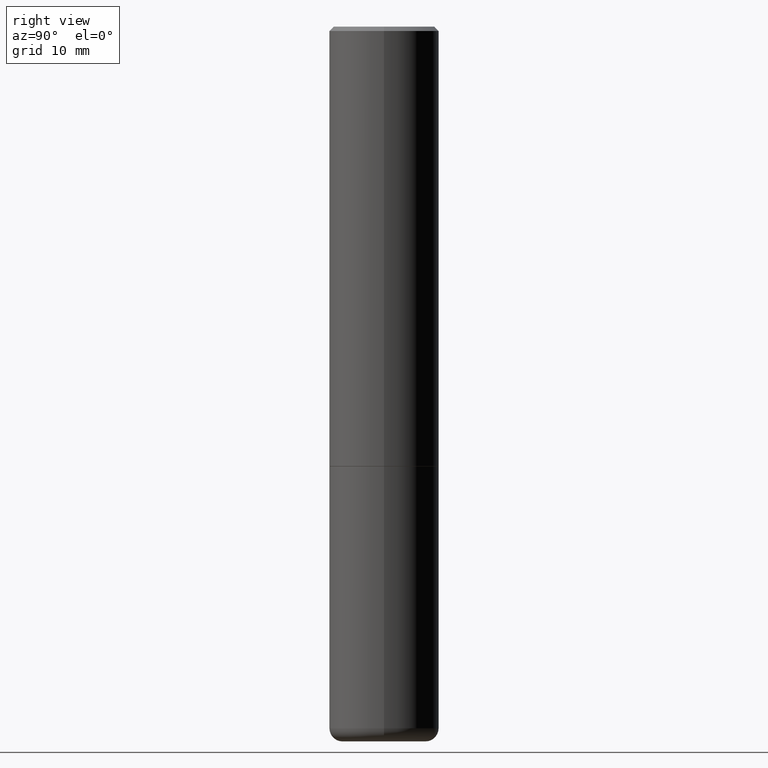
[diagram: clean part render]
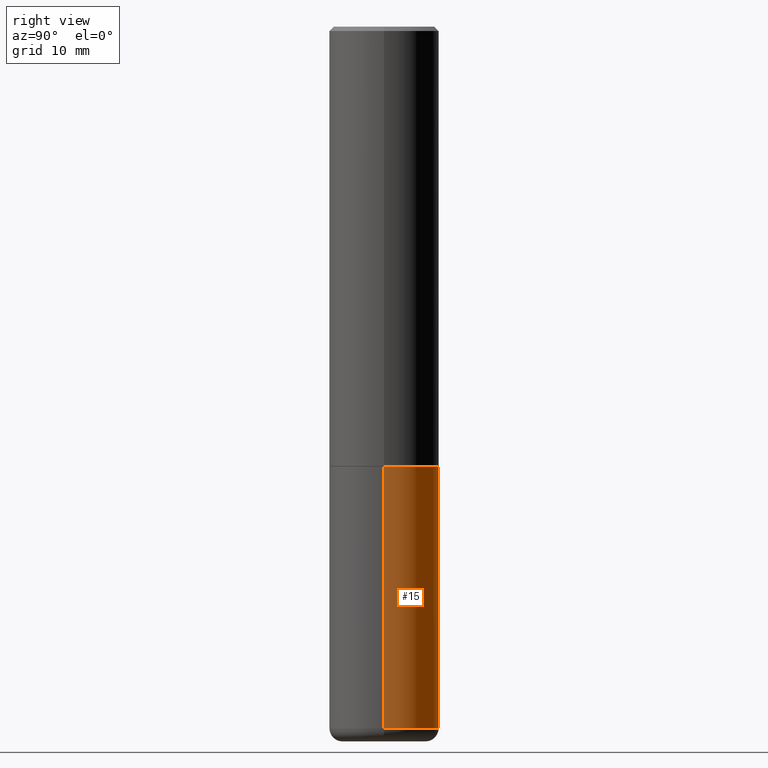
[diagram: same view with one face highlighted and labeled with its STEP entity id]
A machine part, right view. The second image highlights one B-rep face of the part: STEP entity #15.
In plain terms, the highlighted cylindrical surface (partial cylindrical patch) has radius 6.35 mm, axis along (-0, 0, 1).
Its self-contained STEP definition (entity closure, byte-faithful):
#6 = EDGE_CURVE ( 'NONE', #397, #482, #162, .T. ) ;
#9 = DIRECTION ( 'NONE',  ( -2.445468806185136597E-29, 3.491481338843145583E-15, 1.000000000000000000 ) ) ;
#15 = ADVANCED_FACE ( 'NONE', ( #353 ), #431, .T. ) ;
#23 = ORIENTED_EDGE ( 'NONE', *, *, #57, .T. ) ;
#34 = LINE ( 'NONE', #148, #460 ) ;
#38 = DIRECTION ( 'NONE',  ( -2.445468806185136597E-29, 3.491481338843145583E-15, 1.000000000000000000 ) ) ;
#57 = EDGE_CURVE ( 'NONE', #318, #175, #34, .T. ) ;
#85 = CARTESIAN_POINT ( 'NONE',  ( 4.890937612370273194E-29, -6.982962677686291165E-15, -2.000000000000000000 ) ) ;
#86 = ORIENTED_EDGE ( 'NONE', *, *, #428, .F. ) ;
#114 = CIRCLE ( 'NONE', #186, 0.2499999999999996669 ) ;
#126 = AXIS2_PLACEMENT_3D ( 'NONE', #286, #38, #260 ) ;
#130 = DIRECTION ( 'NONE',  ( -2.445468806185136877E-29, 3.491481338843145188E-15, 1.000000000000000000 ) ) ;
#147 = DIRECTION ( 'NONE',  ( 1.000000000000000000, -6.982962677686268288E-15, 0.000000000000000000 ) ) ;
#148 = CARTESIAN_POINT ( 'NONE',  ( -0.2499999999999998335, 1.776356839400249281E-15, -1.229733772563725605E-29 ) ) ;
#159 = ORIENTED_EDGE ( 'NONE', *, *, #6, .F. ) ;
#162 = LINE ( 'NONE', #426, #213 ) ;
#175 = VERTEX_POINT ( 'NONE', #392 ) ;
#186 = AXIS2_PLACEMENT_3D ( 'NONE', #85, #221, #147 ) ;
#196 = CARTESIAN_POINT ( 'NONE',  ( 0.2499999999999996669, -8.728703347107855476E-15, -2.000000000000000000 ) ) ;
#213 = VECTOR ( 'NONE', #130, 39.37007874015748143 ) ;
#221 = DIRECTION ( 'NONE',  ( -2.445468806185136597E-29, 3.491481338843145583E-15, 1.000000000000000000 ) ) ;
#235 = EDGE_CURVE ( 'NONE', #397, #318, #450, .T. ) ;
#236 = AXIS2_PLACEMENT_3D ( 'NONE', #281, #9, #245 ) ;
#245 = DIRECTION ( 'NONE',  ( 1.000000000000000000, -6.982962677686266711E-15, 4.876176775795935793E-29 ) ) ;
#260 = DIRECTION ( 'NONE',  ( 1.000000000000000000, -6.982962677686262766E-15, 0.000000000000000000 ) ) ;
#281 = CARTESIAN_POINT ( 'NONE',  ( 0.000000000000000000, 0.000000000000000000, 0.000000000000000000 ) ) ;
#286 = CARTESIAN_POINT ( 'NONE',  ( 7.801051078688113029E-29, -1.113783344760428697E-14, -3.190002284616149542 ) ) ;
#318 = VERTEX_POINT ( 'NONE', #415 ) ;
#329 = DIRECTION ( 'NONE',  ( -2.445468806185136877E-29, 3.491481338843145188E-15, 1.000000000000000000 ) ) ;
#340 = CARTESIAN_POINT ( 'NONE',  ( 0.2500000000000000000, -1.288357411702585207E-14, -3.190002284616149542 ) ) ;
#353 = FACE_OUTER_BOUND ( 'NONE', #386, .T. ) ;
#386 = EDGE_LOOP ( 'NONE', ( #403, #23, #86, #159 ) ) ;
#392 = CARTESIAN_POINT ( 'NONE',  ( -0.2499999999999996669, -7.284041223245038997E-15, -2.000000000000000000 ) ) ;
#397 = VERTEX_POINT ( 'NONE', #340 ) ;
#403 = ORIENTED_EDGE ( 'NONE', *, *, #235, .T. ) ;
#415 = CARTESIAN_POINT ( 'NONE',  ( -0.2500000000000000000, -7.284041223245037419E-15, -3.190002284616149542 ) ) ;
#426 = CARTESIAN_POINT ( 'NONE',  ( 0.2499999999999998335, -1.745740669421565494E-15, 1.219044193948983107E-29 ) ) ;
#428 = EDGE_CURVE ( 'NONE', #482, #175, #114, .T. ) ;
#431 = CYLINDRICAL_SURFACE ( 'NONE', #236, 0.2499999999999998335 ) ;
#450 = CIRCLE ( 'NONE', #126, 0.2500000000000000000 ) ;
#460 = VECTOR ( 'NONE', #329, 39.37007874015748143 ) ;
#482 = VERTEX_POINT ( 'NONE', #196 ) ;